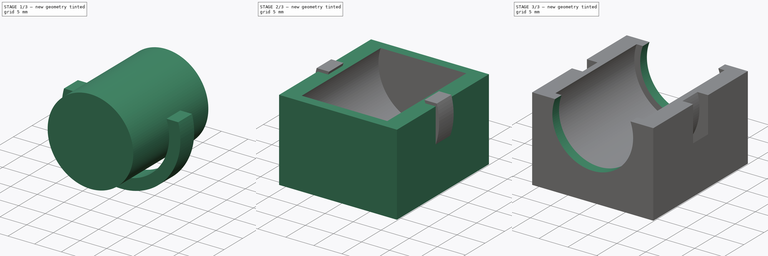
[diagram: build sequence overview — one tinted view per stage of 3, left to right]
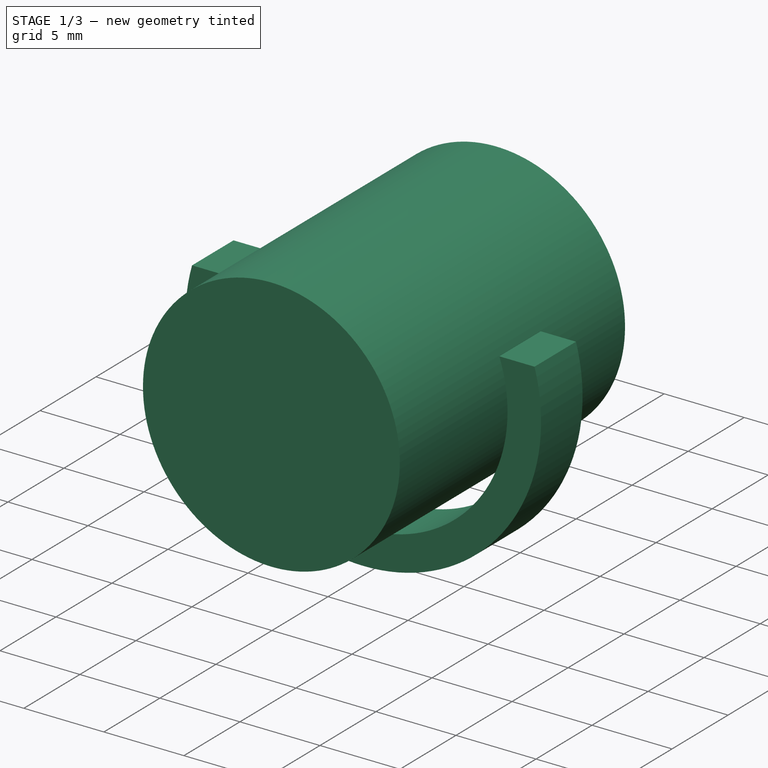
[diagram: stage 1 of 3 — iso view after this stage's code; geometry added in this stage tinted green]
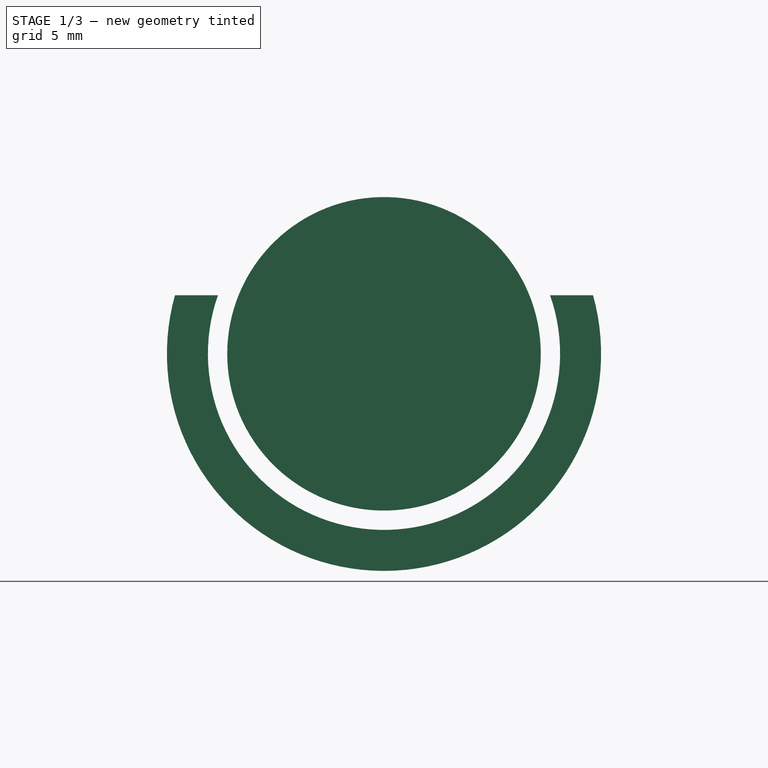
[diagram: stage 1 of 3 — front view after this stage's code; geometry added in this stage tinted green]
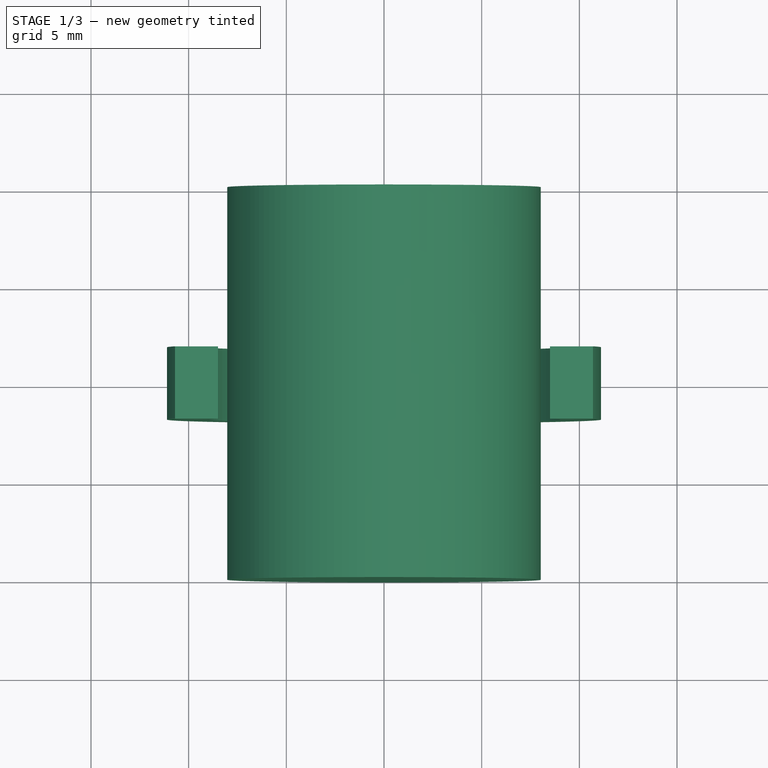
[diagram: stage 1 of 3 — top view after this stage's code; geometry added in this stage tinted green]
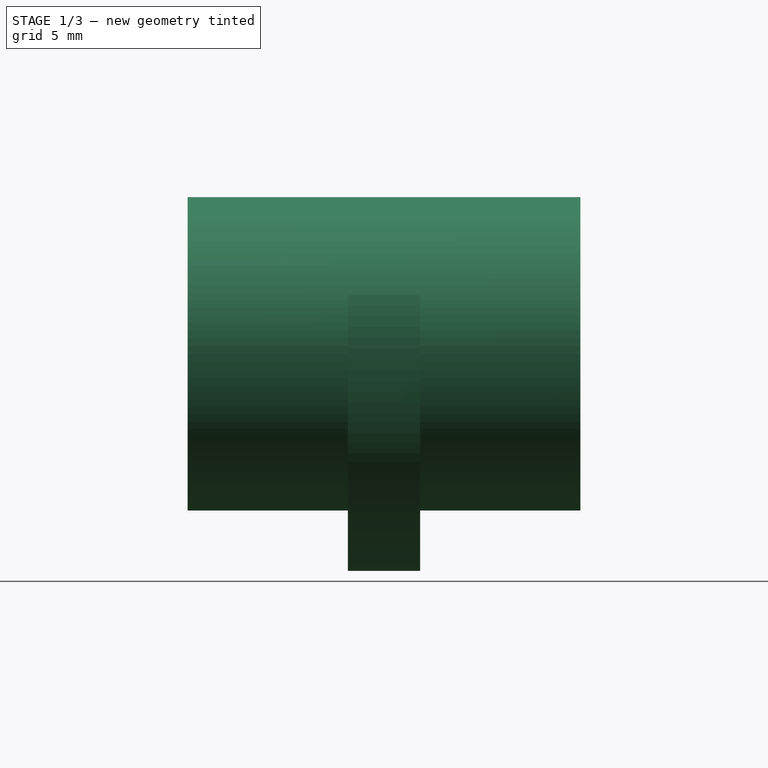
[diagram: stage 1 of 3 — right view after this stage's code; geometry added in this stage tinted green]
FCSTD DOCUMENT  (FreeCAD 0.15R4671 (Git))
Label: Halter Gleitlager Z - Gleitlager
License: All rights reserved
LicenseURL: http://de.wikipedia.org/wiki/Alle_Rechte_vorbehalten
objects: Sketcher::SketchObject×4, PartDesign::Pad×3, Part::Cut×2, PartDesign::Pocket×1
note: 14 computed .brp shape members not serialized (recipe doc carries the construction recipe); baked Part::Feature solids carry a one-line shape summary decoded from their .brp

FEATURE [Sketcher::SketchObject] Sketch001
  Placement = pos=(0,0,0) rot=(1,0,0;1.5708rad)
  sketch-geometry (1):
    g0: Circle CenterX=0 CenterY=12 CenterZ=0 NormalX=0 NormalY=0 NormalZ=1 Radius=8.025
  constraints (3):
    c: PointOnObject(g0,g-2)
    c: DistanceY(g-1,g0) = 12
    c: Radius(g0) = 8.025
FEATURE [PartDesign::Pad] Pad001
  Length = 20.1
  Length2 = 100
  Midplane = true
  Placement = pos=(0,0,0) rot=(1,0,0;1.5708rad)
  Sketch = -> Sketch001
  Type = 0
FEATURE [Sketcher::SketchObject] Sketch003
  Placement = pos=(0,0,0) rot=(1,0,0;1.5708rad)
  sketch-geometry (5):
    g0: Circle [constr] CenterX=0 CenterY=11.5 CenterZ=0 NormalX=0 NormalY=0 NormalZ=1 Radius=8.55
    g1: LineSegment StartX=-8.5 StartY=15 StartZ=0 EndX=-10.7 EndY=15 EndZ=0
    g2: LineSegment StartX=8.5 StartY=15 StartZ=0 EndX=10.7 EndY=15 EndZ=0
    g3: ArcOfCircle CenterX=0 CenterY=12 CenterZ=0 NormalX=0 NormalY=0 NormalZ=1 Radius=9.01388 StartAngle=2.8023 EndAngle=6.62248
    g4: ArcOfCircle CenterX=0 CenterY=12 CenterZ=0 NormalX=0 NormalY=0 NormalZ=1 Radius=11.1126 StartAngle=2.86824 EndAngle=6.55654
  constraints (19):
    c: PointOnObject(g0,g-2)
    c: Radius(g0) = 8.55
    c: DistanceY(g-1,g0) = 11.5
    c: Symmetric(g1,g2,g-2)
    c: DistanceY(g-1,g2) = 15
    c: DistanceX(g1,g2) = 17
    c: Symmetric(g1,g2,g-2)
    c: Equal(g2,g1)
    c: Horizontal(g2)
    c: Horizontal(g1)
    c: DistanceX(g2) = 2.2
    c: PointOnObject(g3,g-2)
    c: Coincident(g3,g1)
    c: Coincident(g3,g2)
    c: DistanceY(g-1,g3) = 12
    c: PointOnObject(g4,g-2)
    c: Coincident(g4,g1)
    c: Coincident(g4,g2)
    c: DistanceY(g-1,g4) = 12
FEATURE [PartDesign::Pad] Pad002
  Length = 3.7
  Length2 = 100
  Midplane = true
  Placement = pos=(0,0,0) rot=(1,0,0;1.5708rad)
  Sketch = -> Sketch003
  Type = 0
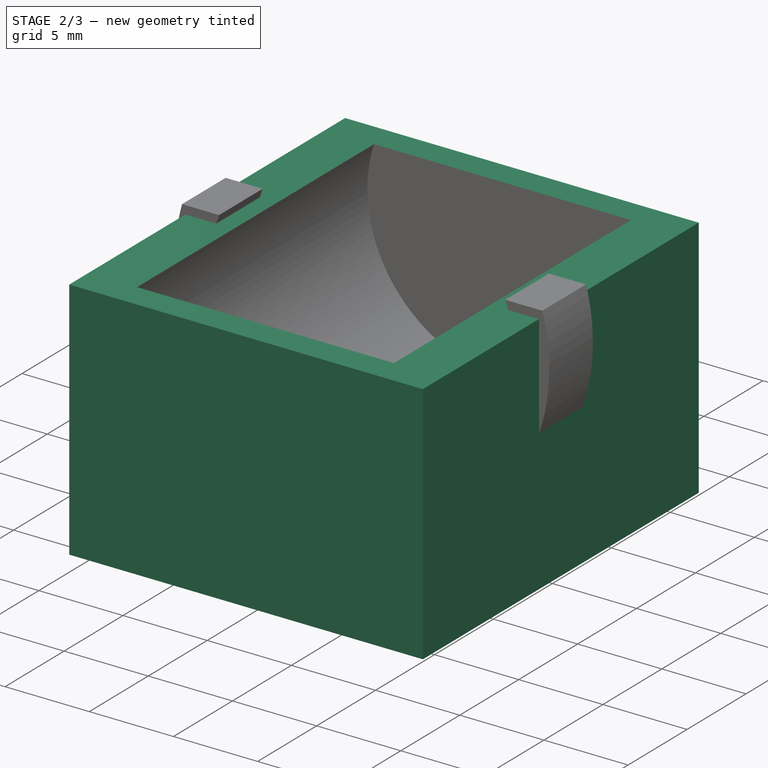
[diagram: stage 2 of 3 — iso view after this stage's code; geometry added in this stage tinted green]
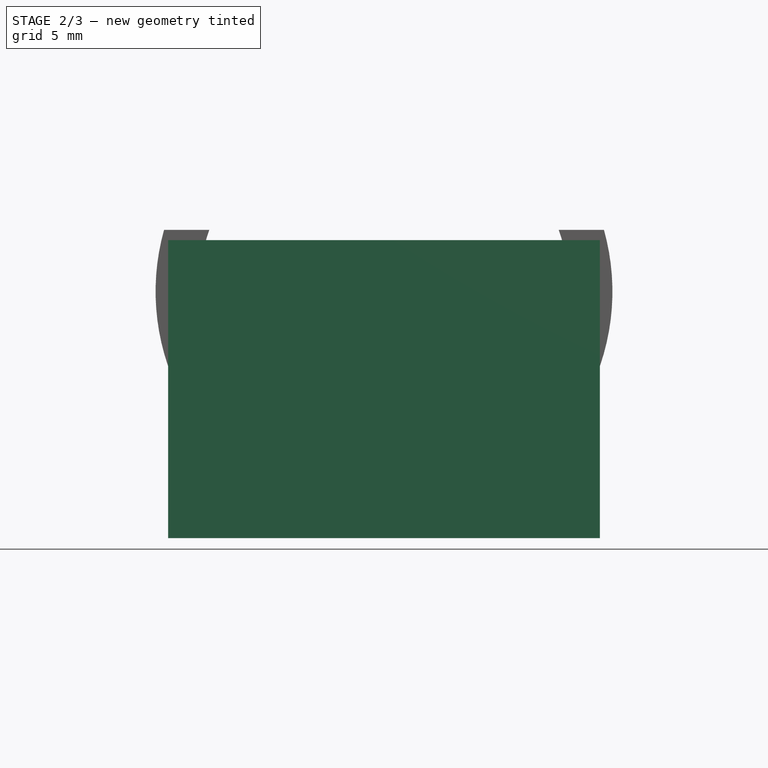
[diagram: stage 2 of 3 — front view after this stage's code; geometry added in this stage tinted green]
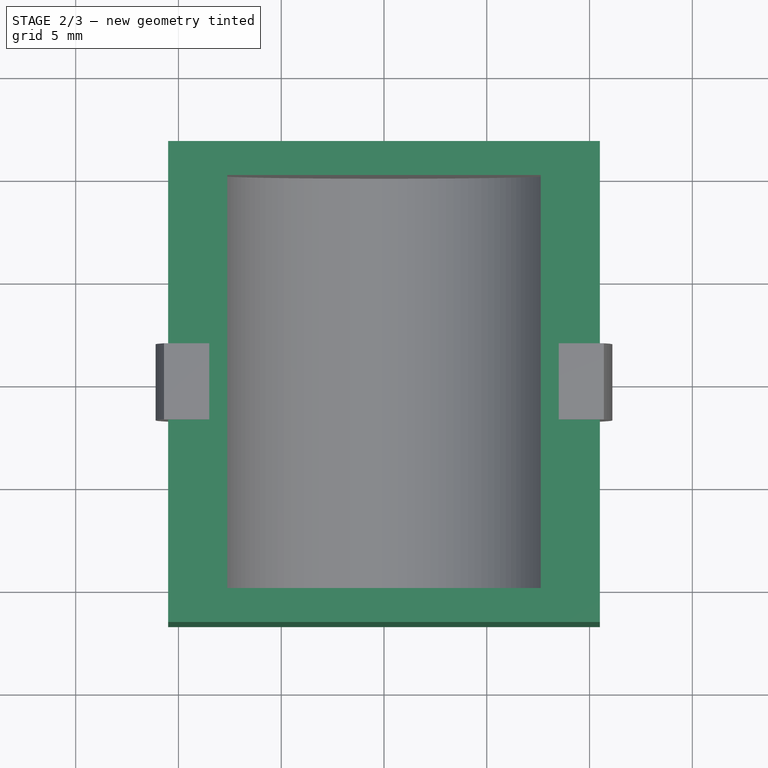
[diagram: stage 2 of 3 — top view after this stage's code; geometry added in this stage tinted green]
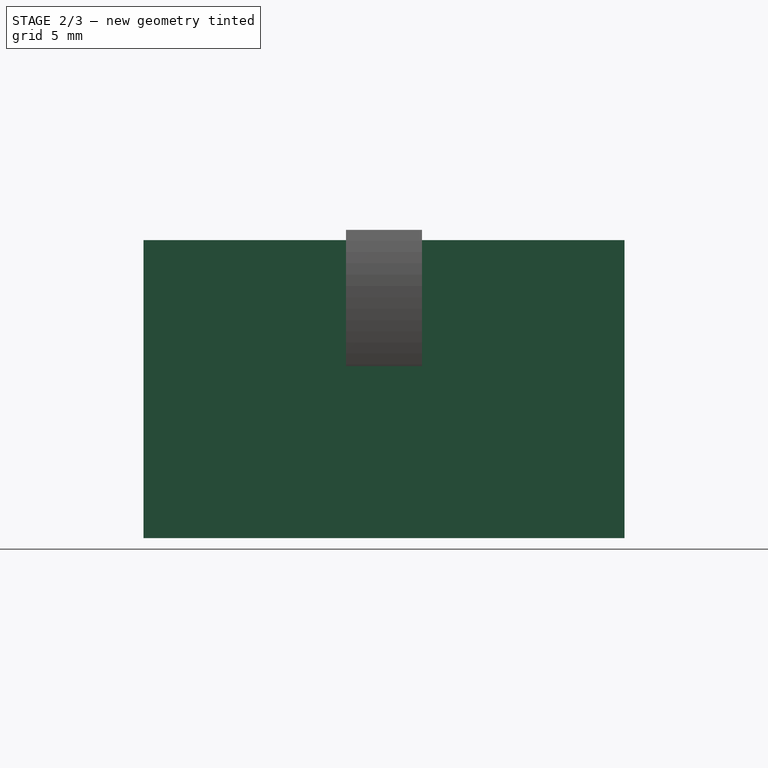
[diagram: stage 2 of 3 — right view after this stage's code; geometry added in this stage tinted green]
FEATURE [Sketcher::SketchObject] Sketch
  sketch-geometry (4):
    g0: LineSegment StartX=-10.5 StartY=11.7 StartZ=0 EndX=10.5 EndY=11.7 EndZ=0
    g1: LineSegment StartX=10.5 StartY=11.7 StartZ=0 EndX=10.5 EndY=-11.7 EndZ=0
    g2: LineSegment StartX=10.5 StartY=-11.7 StartZ=0 EndX=-10.5 EndY=-11.7 EndZ=0
    g3: LineSegment StartX=-10.5 StartY=-11.7 StartZ=0 EndX=-10.5 EndY=11.7 EndZ=0
  constraints (12):
    c: Coincident(g0,g1)
    c: Coincident(g1,g2)
    c: Coincident(g2,g3)
    c: Coincident(g3,g0)
    c: Horizontal(g0)
    c: Horizontal(g2)
    c: Vertical(g1)
    c: Vertical(g3)
    c: Symmetric(g1,g2,g-2)
    c: Symmetric(g0,g1,g-1)
    c: DistanceX(g0) = 21
    c: DistanceY(g1) = -23.4
FEATURE [PartDesign::Pad] Pad
  Length = 14.5
  Length2 = 100
  Sketch = -> Sketch
  Type = 0
FEATURE [Part::Cut] Cut
  Base = -> Pad
  Tool = -> Pad001
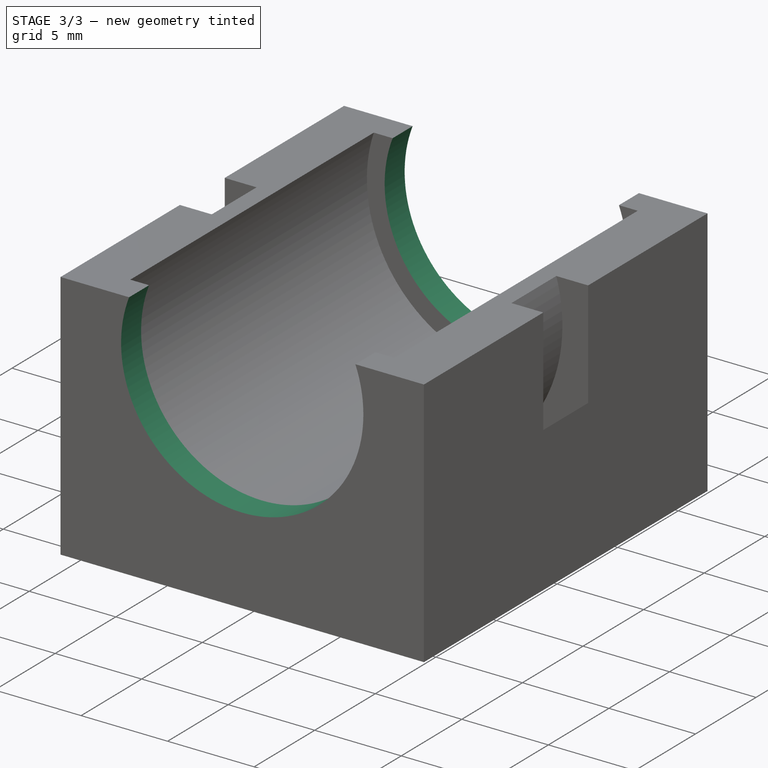
[diagram: stage 3 of 3 — iso view after this stage's code; geometry added in this stage tinted green]
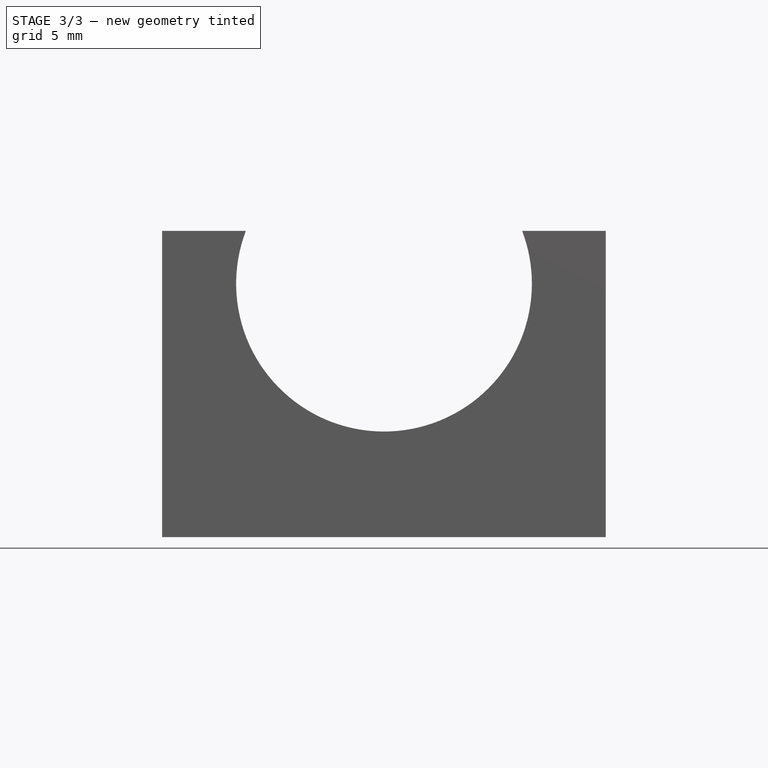
[diagram: stage 3 of 3 — front view after this stage's code; geometry added in this stage tinted green]
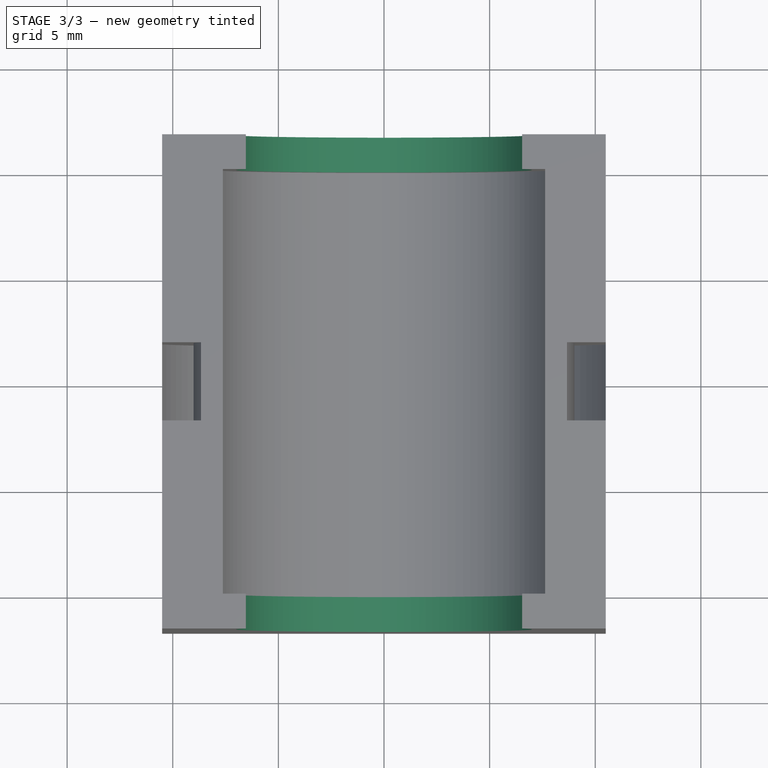
[diagram: stage 3 of 3 — top view after this stage's code; geometry added in this stage tinted green]
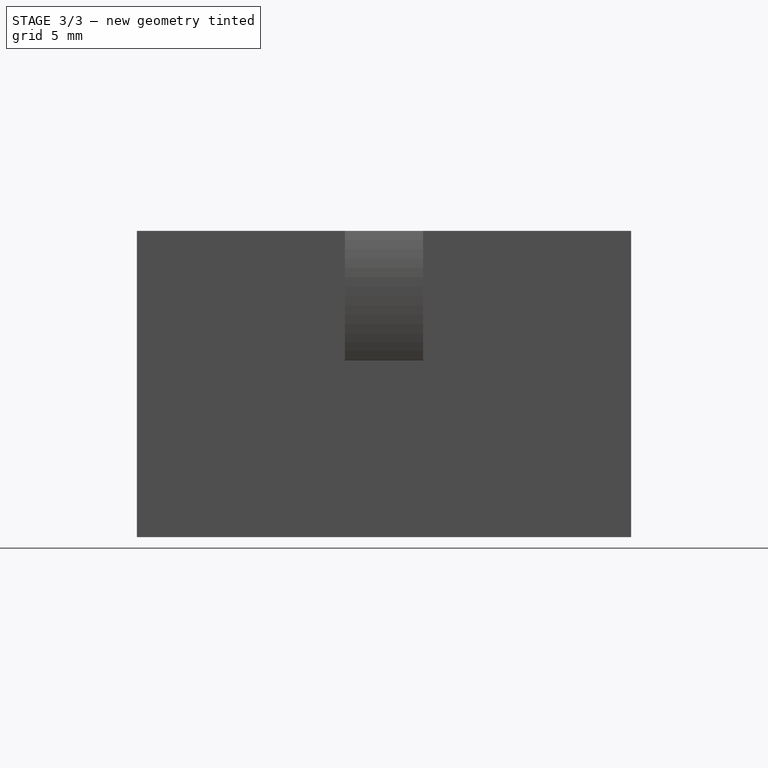
[diagram: stage 3 of 3 — right view after this stage's code; geometry added in this stage tinted green]
FEATURE [Sketcher::SketchObject] Sketch002
  Placement = pos=(0,-11.7,0) rot=(1,0,0;1.5708rad)
  Support = -> Cut [Face6]
  sketch-geometry (1):
    g0: Circle CenterX=0 CenterY=12 CenterZ=0 NormalX=0 NormalY=0 NormalZ=1 Radius=7
  constraints (3):
    c: PointOnObject(g0,g-2)
    c: DistanceY(g-1,g0) = 12
    c: Radius(g0) = 7
FEATURE [PartDesign::Pocket] Pocket
  Length = 5
  Sketch = -> Sketch002
  Type = 1
FEATURE [Part::Cut] Cut001
  Base = -> Pocket
  Tool = -> Pad002
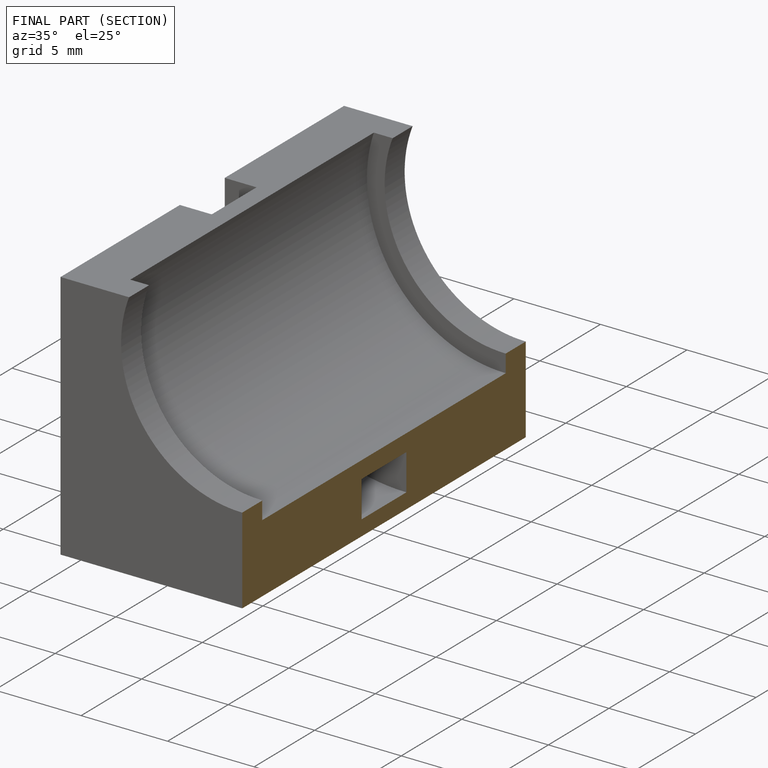
[diagram: finished part — half-section view (interior)]
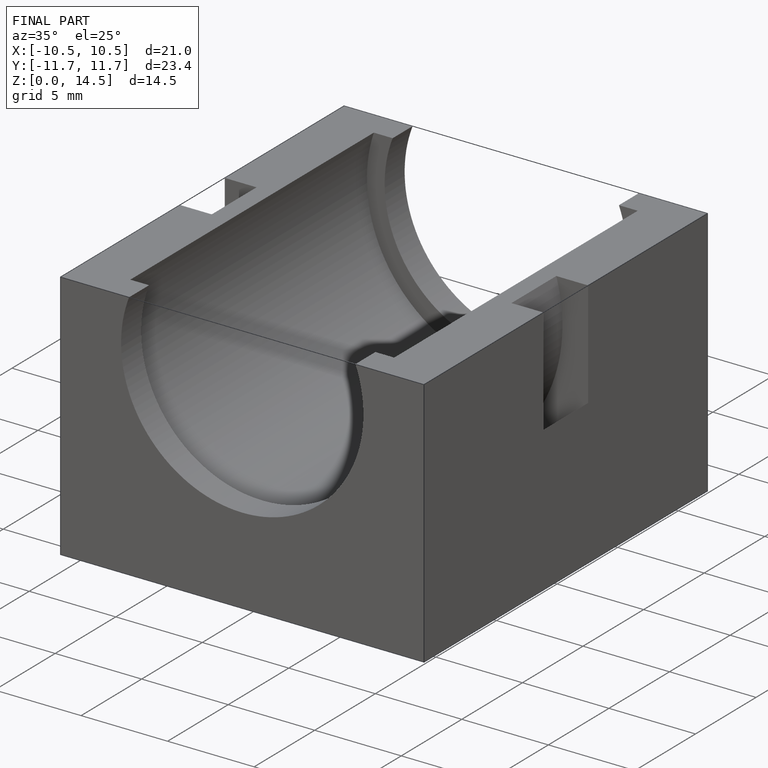
[diagram: finished part — iso view with bounding-box wireframe]
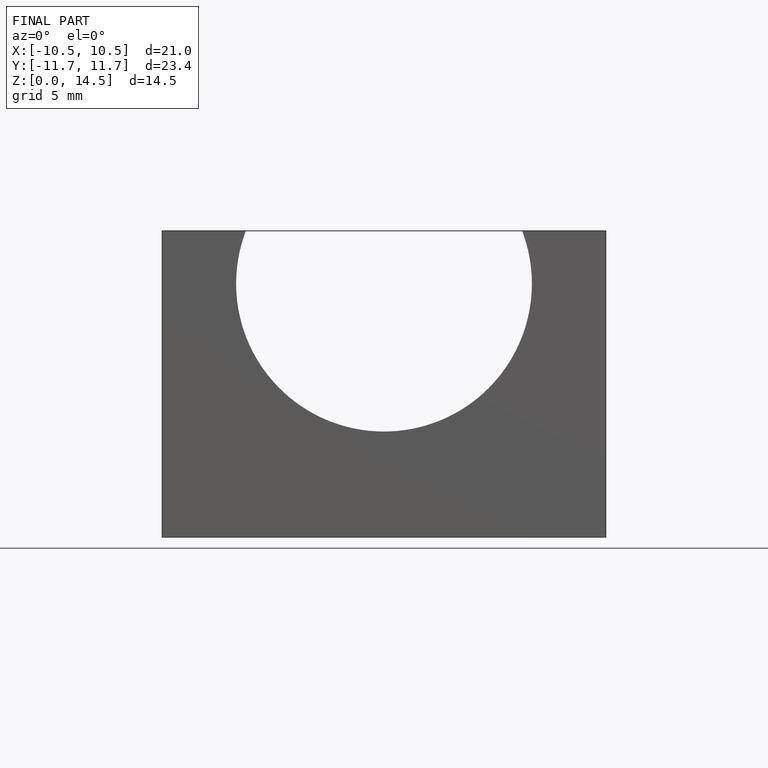
[diagram: finished part — front view with bounding-box wireframe]
